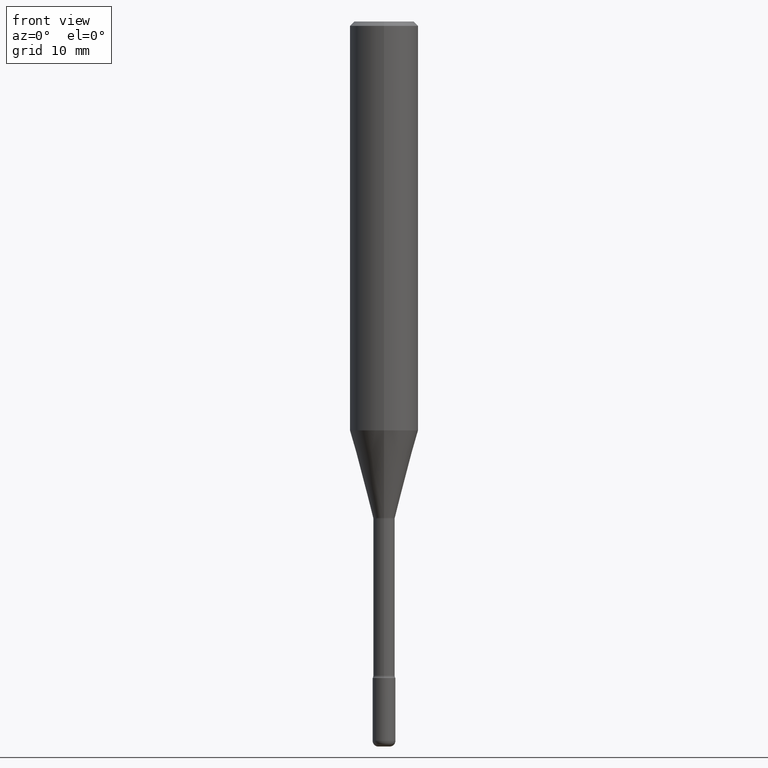
[diagram: clean part render]
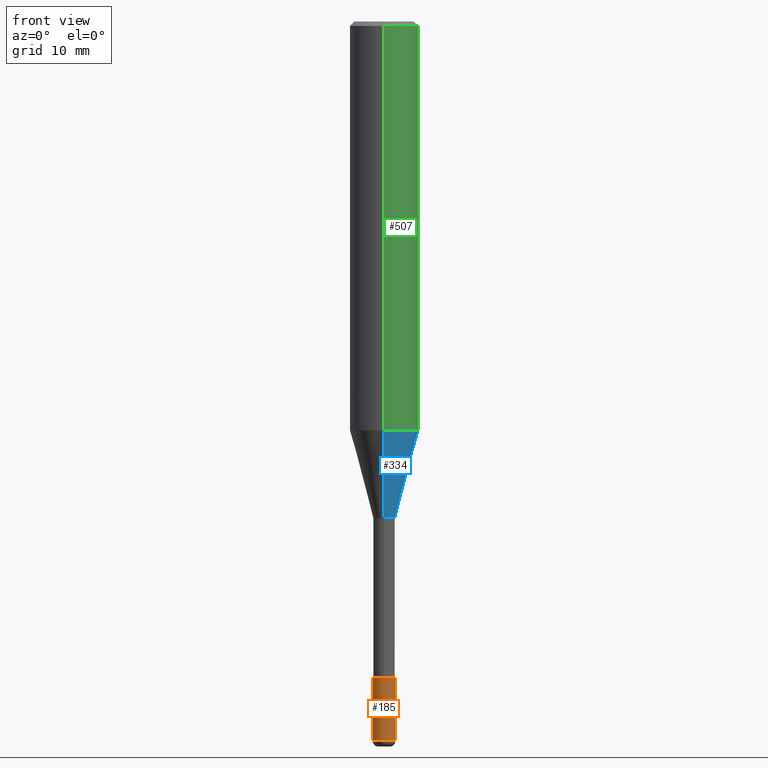
[diagram: same view with three faces highlighted in distinct colors, each labeled with its STEP entity id]
A machine part, front view with three faces highlighted in distinct colors.
Their STEP definitions:

[orange] entity #185 — the highlighted cylindrical surface (edge-blend (fillet) strip) has radius 0.9995 mm, axis along (-0, 0, 1).
#1 = CARTESIAN_POINT ( 'NONE',  ( 0.03935000000000008630, -8.934700746099610252E-15, -2.480300000000000171 ) ) ;
#32 = EDGE_CURVE ( 'NONE', #304, #246, #361, .T. ) ;
#60 = CARTESIAN_POINT ( 'NONE',  ( 6.065496279980994755E-29, -8.659921164732655335E-15, -2.480300000000000171 ) ) ;
#62 = VERTEX_POINT ( 'NONE', #1 ) ;
#74 = ORIENTED_EDGE ( 'NONE', *, *, #476, .T. ) ;
#106 = DIRECTION ( 'NONE',  ( -2.445468806185136597E-29, 3.491481338843145583E-15, 1.000000000000000000 ) ) ;
#138 = VECTOR ( 'NONE', #332, 39.37007874015748143 ) ;
#161 = ORIENTED_EDGE ( 'NONE', *, *, #32, .F. ) ;
#166 = DIRECTION ( 'NONE',  ( -2.445468806185136877E-29, 3.491481338843145188E-15, 1.000000000000000000 ) ) ;
#170 = LINE ( 'NONE', #336, #138 ) ;
#185 = ADVANCED_FACE ( 'NONE', ( #537 ), #488, .T. ) ;
#217 = DIRECTION ( 'NONE',  ( 1.000000000000000000, -6.982962677686269077E-15, 0.000000000000000000 ) ) ;
#221 = CARTESIAN_POINT ( 'NONE',  ( 0.03935000000000000303, -8.178795036240066864E-15, -2.263800000000000257 ) ) ;
#236 = DIRECTION ( 'NONE',  ( -2.445468806185136597E-29, 3.491481338843145583E-15, 1.000000000000000000 ) ) ;
#246 = VERTEX_POINT ( 'NONE', #221 ) ;
#251 = EDGE_LOOP ( 'NONE', ( #475, #375, #74, #161 ) ) ;
#304 = VERTEX_POINT ( 'NONE', #410 ) ;
#318 = CARTESIAN_POINT ( 'NONE',  ( -0.03935000000000008630, -8.380322598211055940E-15, -2.480300000000000171 ) ) ;
#320 = DIRECTION ( 'NONE',  ( 1.000000000000000000, -6.982962677686266711E-15, 4.876176775795936353E-29 ) ) ;
#329 = EDGE_CURVE ( 'NONE', #403, #62, #435, .T. ) ;
#331 = VECTOR ( 'NONE', #166, 39.37007874015748143 ) ;
#332 = DIRECTION ( 'NONE',  ( -2.445468806185136877E-29, 3.491481338843145188E-15, 1.000000000000000000 ) ) ;
#336 = CARTESIAN_POINT ( 'NONE',  ( -0.03935000000000000303, 2.795985665215994447E-16, -1.935600958015305291E-30 ) ) ;
#338 = AXIS2_PLACEMENT_3D ( 'NONE', #494, #106, #320 ) ;
#361 = CIRCLE ( 'NONE', #372, 0.03935000000000000303 ) ;
#372 = AXIS2_PLACEMENT_3D ( 'NONE', #439, #386, #217 ) ;
#375 = ORIENTED_EDGE ( 'NONE', *, *, #329, .T. ) ;
#386 = DIRECTION ( 'NONE',  ( -2.445468806185136597E-29, 3.491481338843145583E-15, 1.000000000000000000 ) ) ;
#403 = VERTEX_POINT ( 'NONE', #318 ) ;
#410 = CARTESIAN_POINT ( 'NONE',  ( -0.03935000000000000303, -8.002369743281284246E-15, -2.263800000000000257 ) ) ;
#435 = CIRCLE ( 'NONE', #471, 0.03935000000000000303 ) ;
#439 = CARTESIAN_POINT ( 'NONE',  ( 5.536052283441912610E-29, -7.904015454873113525E-15, -2.263800000000000257 ) ) ;
#440 = EDGE_CURVE ( 'NONE', #403, #304, #170, .T. ) ;
#456 = DIRECTION ( 'NONE',  ( 1.000000000000000000, -6.982962677686244622E-15, 0.000000000000000000 ) ) ;
#471 = AXIS2_PLACEMENT_3D ( 'NONE', #60, #236, #456 ) ;
#475 = ORIENTED_EDGE ( 'NONE', *, *, #440, .F. ) ;
#476 = EDGE_CURVE ( 'NONE', #62, #246, #511, .T. ) ;
#488 = CYLINDRICAL_SURFACE ( 'NONE', #338, 0.03935000000000000303 ) ;
#494 = CARTESIAN_POINT ( 'NONE',  ( 0.000000000000000000, 0.000000000000000000, 0.000000000000000000 ) ) ;
#511 = LINE ( 'NONE', #561, #331 ) ;
#537 = FACE_OUTER_BOUND ( 'NONE', #251, .T. ) ;
#561 = CARTESIAN_POINT ( 'NONE',  ( 0.03935000000000000303, -2.747795813669546211E-16, 1.918775561275701074E-30 ) ) ;

[blue] entity #334 — the highlighted conical surface has half-angle 15 deg.
#2 = VECTOR ( 'NONE', #198, 39.37007874015748854 ) ;
#22 = CARTESIAN_POINT ( 'NONE',  ( -2.619386993237965275E-16, -0.03751111260566995093, -1.710692501787273390 ) ) ;
#26 = AXIS2_PLACEMENT_3D ( 'NONE', #155, #412, #328 ) ;
#30 = EDGE_CURVE ( 'NONE', #366, #70, #308, .T. ) ;
#43 = CONICAL_SURFACE ( 'NONE', #415, 0.03751111260566397654, 0.2617993877991500740 ) ;
#48 = VECTOR ( 'NONE', #264, 39.37007874015748854 ) ;
#68 = ORIENTED_EDGE ( 'NONE', *, *, #481, .F. ) ;
#69 = CARTESIAN_POINT ( 'NONE',  ( 4.183309985249835233E-29, -5.973044510241383254E-15, -1.710692501787273390 ) ) ;
#70 = VERTEX_POINT ( 'NONE', #342 ) ;
#72 = FACE_OUTER_BOUND ( 'NONE', #160, .T. ) ;
#82 = CARTESIAN_POINT ( 'NONE',  ( 4.183309985249835233E-29, -5.973044510241383254E-15, -1.710692501787273390 ) ) ;
#146 = DIRECTION ( 'NONE',  ( -6.982962677686266711E-15, -1.000000000000000000, 0.000000000000000000 ) ) ;
#151 = EDGE_CURVE ( 'NONE', #339, #366, #258, .T. ) ;
#155 = CARTESIAN_POINT ( 'NONE',  ( 3.447830094494486299E-29, -4.922906189304403806E-15, -1.409930679506165019 ) ) ;
#160 = EDGE_LOOP ( 'NONE', ( #168, #502, #241, #68 ) ) ;
#168 = ORIENTED_EDGE ( 'NONE', *, *, #151, .T. ) ;
#198 = DIRECTION ( 'NONE',  ( -1.807323732225328562E-15, -0.2588190451025179639, 0.9659258262890690894 ) ) ;
#216 = AXIS2_PLACEMENT_3D ( 'NONE', #82, #438, #146 ) ;
#234 = CARTESIAN_POINT ( 'NONE',  ( -8.246878922347136513E-16, -0.1181000000000049094, -1.409930679506164797 ) ) ;
#241 = ORIENTED_EDGE ( 'NONE', *, *, #409, .F. ) ;
#255 = DIRECTION ( 'NONE',  ( -2.445389794413230210E-29, 3.491594488197586527E-15, 1.000000000000000000 ) ) ;
#258 = CIRCLE ( 'NONE', #216, 0.03751111260566397654 ) ;
#264 = DIRECTION ( 'NONE',  ( 1.839019923739598738E-15, 0.2588190451025247363, 0.9659258262890673130 ) ) ;
#292 = VERTEX_POINT ( 'NONE', #234 ) ;
#298 = LINE ( 'NONE', #22, #2 ) ;
#308 = LINE ( 'NONE', #393, #48 ) ;
#328 = DIRECTION ( 'NONE',  ( -6.982962677686265922E-15, -1.000000000000000000, 4.626330217890369336E-15 ) ) ;
#334 = ADVANCED_FACE ( 'NONE', ( #72 ), #43, .T. ) ;
#339 = VERTEX_POINT ( 'NONE', #389 ) ;
#341 = DIRECTION ( 'NONE',  ( -6.982962677686266711E-15, -1.000000000000000000, 0.000000000000000000 ) ) ;
#342 = CARTESIAN_POINT ( 'NONE',  ( 8.391509709327121181E-16, 0.1180999999999950423, -1.409930679506165685 ) ) ;
#366 = VERTEX_POINT ( 'NONE', #555 ) ;
#389 = CARTESIAN_POINT ( 'NONE',  ( -2.619386993237965275E-16, -0.03751111260566995093, -1.710692501787273390 ) ) ;
#393 = CARTESIAN_POINT ( 'NONE',  ( 2.665324857223784301E-16, 0.03751111260565800909, -1.710692501787273390 ) ) ;
#409 = EDGE_CURVE ( 'NONE', #292, #70, #465, .T. ) ;
#412 = DIRECTION ( 'NONE',  ( -2.445389794413230210E-29, 3.491594488197586527E-15, 1.000000000000000000 ) ) ;
#415 = AXIS2_PLACEMENT_3D ( 'NONE', #69, #255, #341 ) ;
#438 = DIRECTION ( 'NONE',  ( -2.445389794413230210E-29, 3.491594488197586527E-15, 1.000000000000000000 ) ) ;
#465 = CIRCLE ( 'NONE', #26, 0.1180999999999999966 ) ;
#481 = EDGE_CURVE ( 'NONE', #339, #292, #298, .T. ) ;
#502 = ORIENTED_EDGE ( 'NONE', *, *, #30, .T. ) ;
#555 = CARTESIAN_POINT ( 'NONE',  ( 5.528417283275456685E-16, 0.03751111260565800909, -1.710692501787273390 ) ) ;

[green] entity #507 — the highlighted cylindrical surface (edge-blend (fillet) strip) has radius 2.9997 mm, axis along (-0, 0, 1).
#26 = AXIS2_PLACEMENT_3D ( 'NONE', #155, #412, #328 ) ;
#55 = DIRECTION ( 'NONE',  ( -6.982962677686265922E-15, -1.000000000000000000, 3.487819265831411744E-15 ) ) ;
#70 = VERTEX_POINT ( 'NONE', #342 ) ;
#94 = CYLINDRICAL_SURFACE ( 'NONE', #294, 0.1180999999999999966 ) ;
#95 = VECTOR ( 'NONE', #364, 39.37007874015748143 ) ;
#121 = DIRECTION ( 'NONE',  ( -2.445389794413230210E-29, 3.491594488197586133E-15, 1.000000000000000000 ) ) ;
#132 = FACE_OUTER_BOUND ( 'NONE', #463, .T. ) ;
#140 = VERTEX_POINT ( 'NONE', #478 ) ;
#148 = CARTESIAN_POINT ( 'NONE',  ( 8.391509709326781971E-16, 0.1180999999999999966, 6.571608983511112252E-17 ) ) ;
#153 = ORIENTED_EDGE ( 'NONE', *, *, #261, .F. ) ;
#155 = CARTESIAN_POINT ( 'NONE',  ( 3.447830094494486299E-29, -4.922906189304403806E-15, -1.409930679506165019 ) ) ;
#173 = ORIENTED_EDGE ( 'NONE', *, *, #175, .F. ) ;
#175 = EDGE_CURVE ( 'NONE', #292, #140, #497, .T. ) ;
#189 = LINE ( 'NONE', #148, #194 ) ;
#194 = VECTOR ( 'NONE', #121, 39.37007874015748143 ) ;
#200 = AXIS2_PLACEMENT_3D ( 'NONE', #455, #534, #55 ) ;
#218 = CARTESIAN_POINT ( 'NONE',  ( -1.169113584055446105E-44, 1.669184350826100908E-30, 4.780733988912460139E-16 ) ) ;
#234 = CARTESIAN_POINT ( 'NONE',  ( -8.246878922347136513E-16, -0.1181000000000049094, -1.409930679506164797 ) ) ;
#261 = EDGE_CURVE ( 'NONE', #140, #546, #509, .T. ) ;
#292 = VERTEX_POINT ( 'NONE', #234 ) ;
#294 = AXIS2_PLACEMENT_3D ( 'NONE', #218, #447, #526 ) ;
#313 = ORIENTED_EDGE ( 'NONE', *, *, #409, .T. ) ;
#324 = CARTESIAN_POINT ( 'NONE',  ( -8.246878922347479668E-16, -0.1180999999999999966, 8.904307079473809916E-16 ) ) ;
#328 = DIRECTION ( 'NONE',  ( -6.982962677686265922E-15, -1.000000000000000000, 4.626330217890369336E-15 ) ) ;
#342 = CARTESIAN_POINT ( 'NONE',  ( 8.391509709327121181E-16, 0.1180999999999950423, -1.409930679506165685 ) ) ;
#350 = CARTESIAN_POINT ( 'NONE',  ( 8.391509709327129070E-16, 0.1180999999999999411, -0.01500000000000044006 ) ) ;
#364 = DIRECTION ( 'NONE',  ( -2.445389794413230210E-29, 3.491594488197586133E-15, 1.000000000000000000 ) ) ;
#409 = EDGE_CURVE ( 'NONE', #292, #70, #465, .T. ) ;
#412 = DIRECTION ( 'NONE',  ( -2.445389794413230210E-29, 3.491594488197586527E-15, 1.000000000000000000 ) ) ;
#413 = EDGE_CURVE ( 'NONE', #70, #546, #189, .T. ) ;
#447 = DIRECTION ( 'NONE',  ( -2.445389794413230210E-29, 3.491594488197586527E-15, 1.000000000000000000 ) ) ;
#455 = CARTESIAN_POINT ( 'NONE',  ( 3.668084691619852076E-31, -5.237391732296389553E-17, -0.01500000000000002720 ) ) ;
#463 = EDGE_LOOP ( 'NONE', ( #313, #513, #153, #173 ) ) ;
#465 = CIRCLE ( 'NONE', #26, 0.1180999999999999966 ) ;
#478 = CARTESIAN_POINT ( 'NONE',  ( -8.246878922347475723E-16, -0.1181000000000000522, -0.01499999999999961607 ) ) ;
#497 = LINE ( 'NONE', #324, #95 ) ;
#507 = ADVANCED_FACE ( 'NONE', ( #132 ), #94, .T. ) ;
#509 = CIRCLE ( 'NONE', #200, 0.1180999999999999966 ) ;
#513 = ORIENTED_EDGE ( 'NONE', *, *, #413, .T. ) ;
#526 = DIRECTION ( 'NONE',  ( -6.982962677686265922E-15, -1.000000000000000000, 3.491594488197586527E-15 ) ) ;
#534 = DIRECTION ( 'NONE',  ( -2.445389794413230210E-29, 3.491594488197586527E-15, 1.000000000000000000 ) ) ;
#546 = VERTEX_POINT ( 'NONE', #350 ) ;